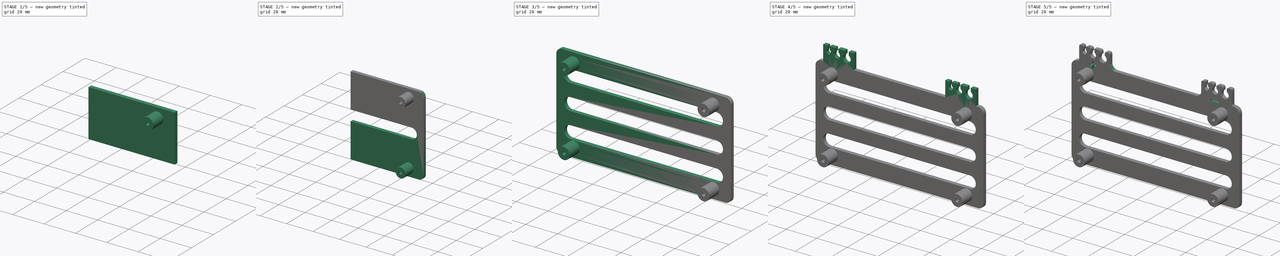
[diagram: build sequence overview — one tinted view per stage of 5, left to right]
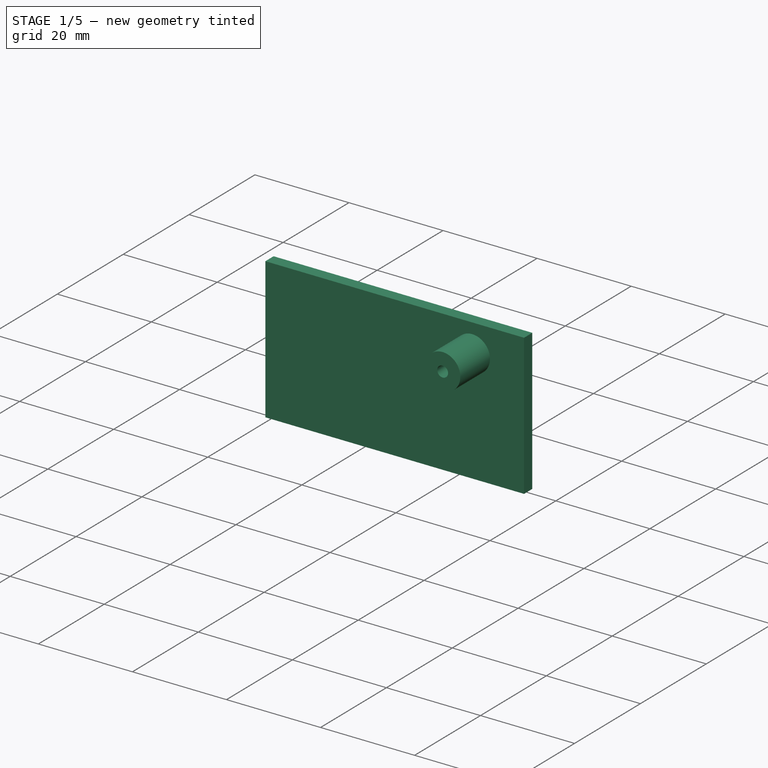
[diagram: stage 1 of 5 — iso view after this stage's code; geometry added in this stage tinted green]
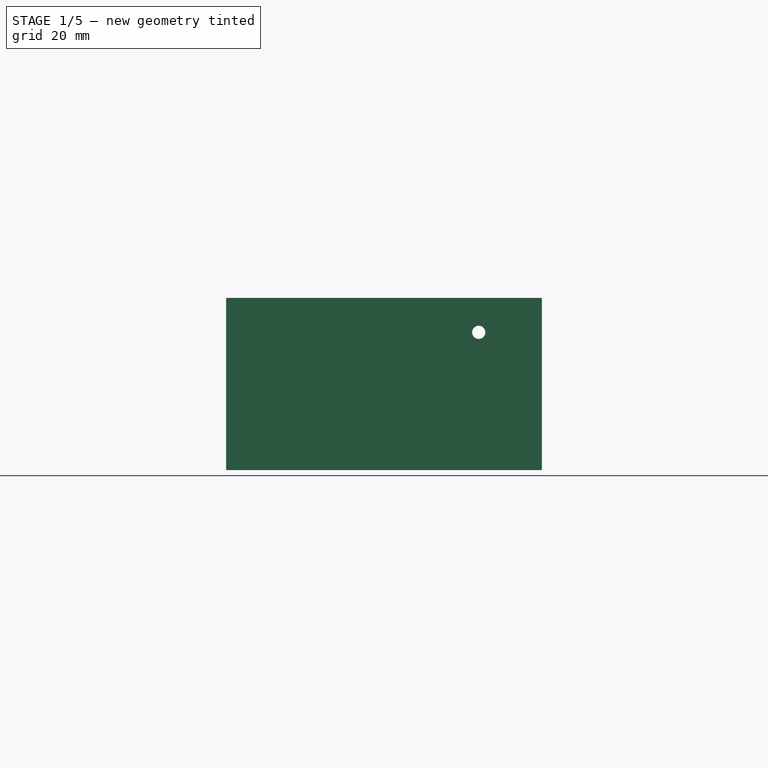
[diagram: stage 1 of 5 — front view after this stage's code; geometry added in this stage tinted green]
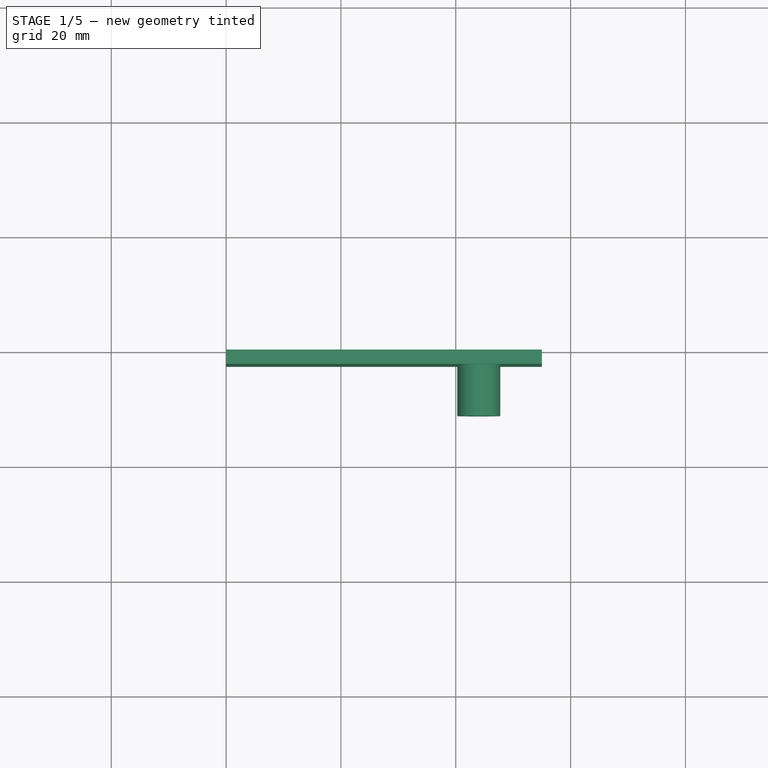
[diagram: stage 1 of 5 — top view after this stage's code; geometry added in this stage tinted green]
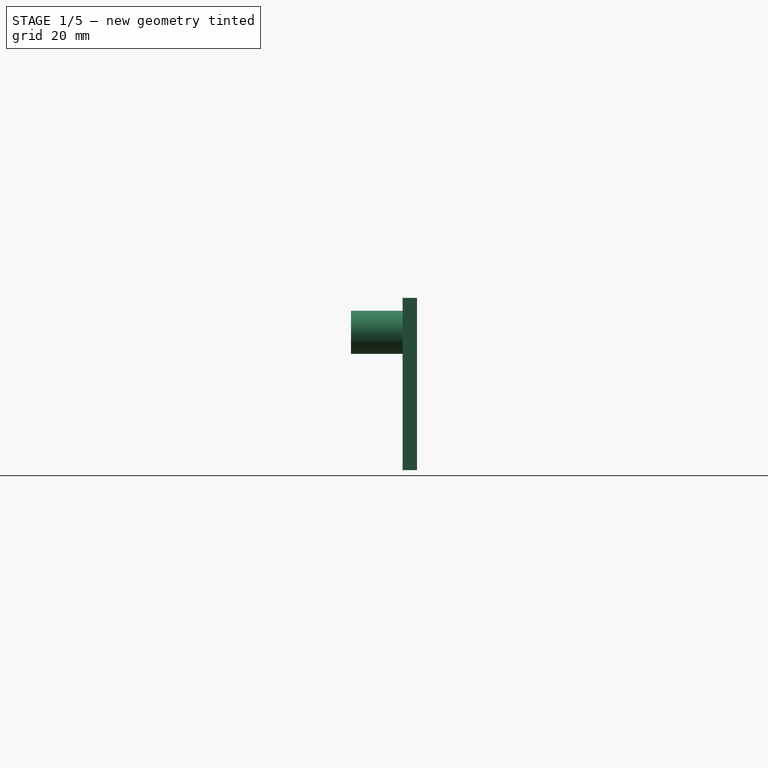
[diagram: stage 1 of 5 — right view after this stage's code; geometry added in this stage tinted green]
FCSTD DOCUMENT  (FreeCAD 1.0R39319 (Git))
Label: ConnectorBoardv3_Carrier
License: All rights reserved
LicenseURL: https://en.wikipedia.org/wiki/All_rights_reserved
objects: Sketcher::SketchObject×8, PartDesign::Pocket×4, PartDesign::Pad×3, PartDesign::Fillet×3, PartDesign::Mirrored×2, PartDesign::LinearPattern×2, PartDesign::CoordinateSystem×2, PartDesign::Hole×1, PartDesign::Body×1, App::Part×1
note: 60 computed .brp shape members not serialized (recipe doc carries the construction recipe); baked Part::Feature solids carry a one-line shape summary decoded from their .brp

FEATURE [Sketcher::SketchObject] Sketch
  ArcFitTolerance = 1e-06
  AttachmentSupport = -> [XZ_Plane001]
  FullyConstrained = true
  MakeInternals = false
  MapMode = 5
  Placement = pos=(0,0,0) rot=(1,0,0;1.5708rad)
  sketch-geometry (4):
    g0: LineSegment StartX=0 StartY=30 StartZ=0 EndX=0 EndY=0 EndZ=0
    g1: LineSegment StartX=0 StartY=0 StartZ=0 EndX=55 EndY=0 EndZ=0
    g2: LineSegment StartX=55 StartY=0 StartZ=0 EndX=55 EndY=30 EndZ=0
    g3: LineSegment StartX=55 StartY=30 StartZ=0 EndX=0 EndY=30 EndZ=0
  constraints (12):
    c: Coincident(g0,g1)
    c: Coincident(g1,g2)
    c: Coincident(g2,g3)
    c: Coincident(g3,g0)
    c: Vertical(g0)
    c: Vertical(g2)
    c: Distance(g-1,g2) = 55
    c: Distance(g0,g1) = 30
    c: Horizontal(g1)
    c: Horizontal(g3)
    c: DistanceX(g-1,g0) = 0
    c: DistanceY(g-1,g0) = 0
FEATURE [PartDesign::Pad] Pad
  Direction = (0,-1,2e-16)
  Length = 2.5
  Length2 = 10
  Placement = pos=(0,0,0) rot=(1,0,0;1.5708rad)
  Profile = -> Sketch
  ReferenceAxis = -> Sketch [N_Axis]
  Refine = true
  Suppressed = false
  Type = 0
FEATURE [Sketcher::SketchObject] Sketch001
  ArcFitTolerance = 1e-06
  AttachmentSupport = -> [XZ_Plane001]
  FullyConstrained = true
  MakeInternals = false
  MapMode = 5
  Placement = pos=(0,0,0) rot=(1,0,0;1.5708rad)
  sketch-geometry (1):
    g0: Circle CenterX=44 CenterY=24 CenterZ=0 NormalX=0 NormalY=0 NormalZ=1 AngleXU=0 Radius=3.75
  constraints (3):
    c: Diameter(g0) = 7.5
    c: DistanceX(g-1,g0) = 44
    c: Distance(g0,g-1) = 24
FEATURE [PartDesign::Pad] Pad001
  BaseFeature = -> Pad
  Direction = (0,-1,2e-16)
  Length = 11.5
  Length2 = 10
  Placement = pos=(0,0,0) rot=(1,0,0;1.5708rad)
  Profile = -> Sketch001
  ReferenceAxis = -> Sketch001 [N_Axis]
  Refine = true
  Suppressed = false
  Type = 0
FEATURE [PartDesign::Hole] Hole
  BaseFeature = -> Pad001
  CustomThreadClearance = 0
  Depth = 128.667
  DepthType = 1
  Diameter = 2.3
  DrillForDepth = false
  DrillPoint = 1
  DrillPointAngle = 118
  HoleCutCountersinkAngle = 90
  HoleCutCustomValues = false
  HoleCutDepth = 0
  HoleCutDiameter = 6.1
  HoleCutType = 0
  ModelThread = false
  Placement = pos=(0,0,0) rot=(1,0,0;1.5708rad)
  Profile = -> Pad001 [Face7]
  Refine = true
  Suppressed = false
  Tapered = false
  TaperedAngle = 90
  ThreadClass = 0
  ThreadDepth = 128.667
  ThreadDepthType = 0
  ThreadDirection = 0
  ThreadFit = 0
  ThreadSize = 0
  ThreadType = 0
  Threaded = false
  UseCustomThreadClearance = false
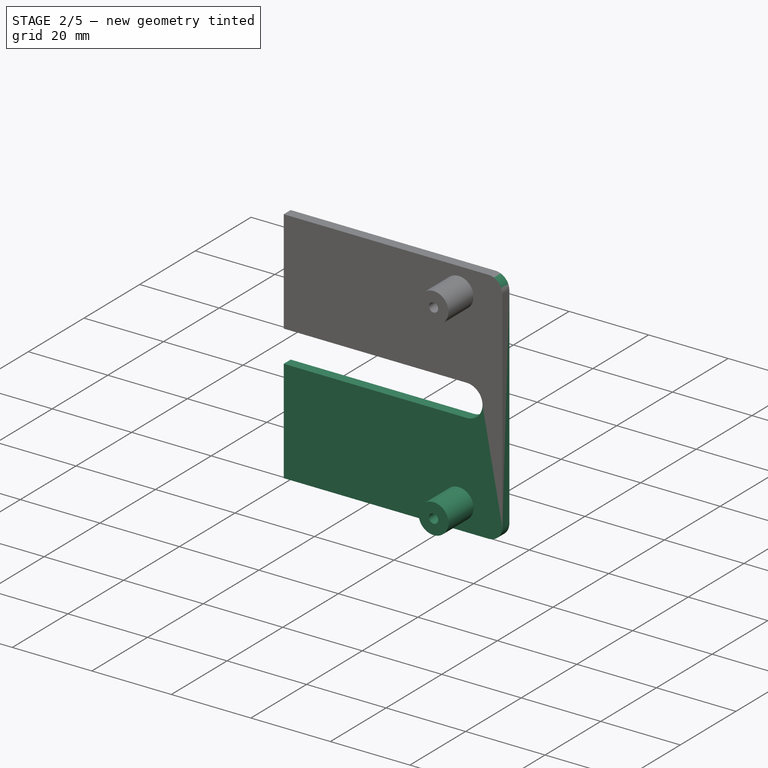
[diagram: stage 2 of 5 — iso view after this stage's code; geometry added in this stage tinted green]
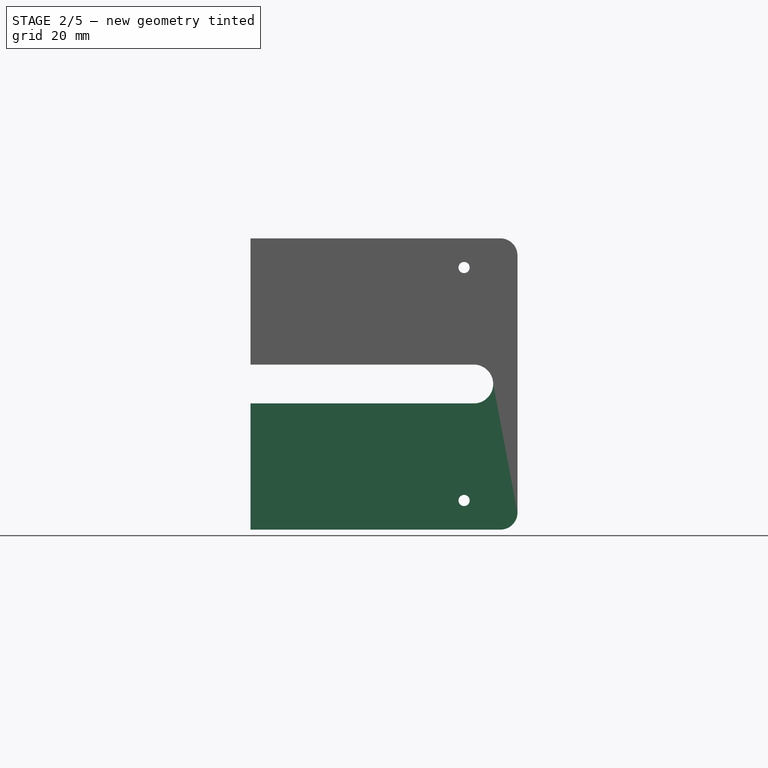
[diagram: stage 2 of 5 — front view after this stage's code; geometry added in this stage tinted green]
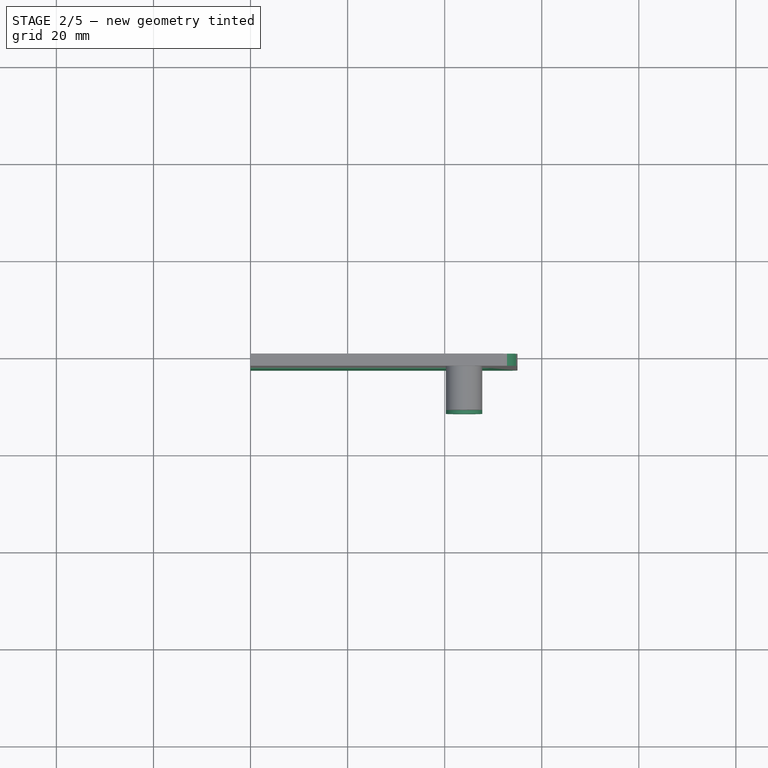
[diagram: stage 2 of 5 — top view after this stage's code; geometry added in this stage tinted green]
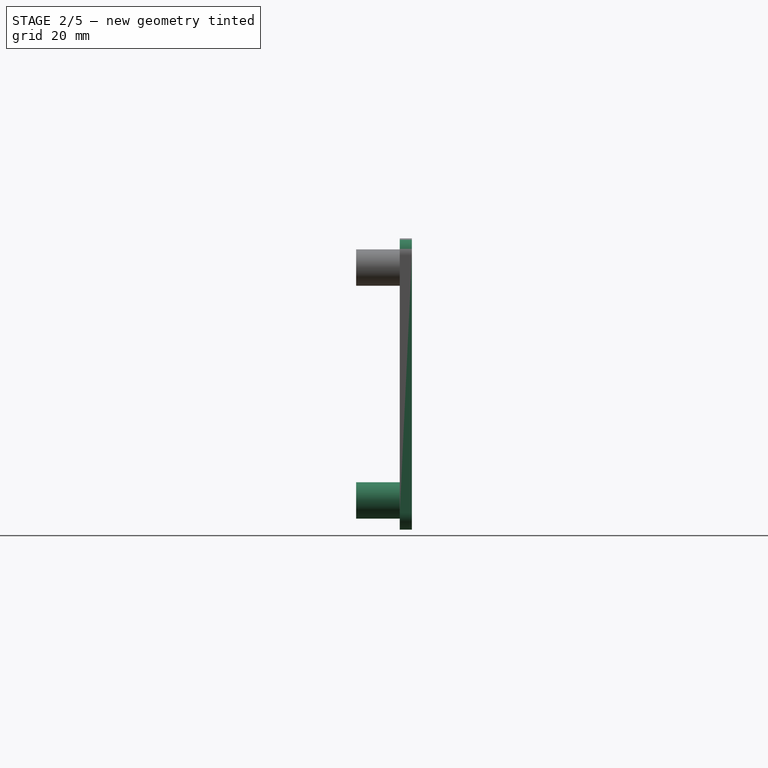
[diagram: stage 2 of 5 — right view after this stage's code; geometry added in this stage tinted green]
FEATURE [PartDesign::Fillet] Fillet
  Base = -> Hole [Edge5]
  BaseFeature = -> Hole
  Placement = pos=(0,0,0) rot=(1,0,0;1.5708rad)
  Radius = 3.5
  Refine = true
  SupportTransform = false
  Suppressed = false
  UseAllEdges = false
FEATURE [Sketcher::SketchObject] Sketch002
  ArcFitTolerance = 1e-06
  AttachmentSupport = -> [XZ_Plane001]
  FullyConstrained = true
  MakeInternals = false
  MapMode = 5
  Placement = pos=(0,0,0) rot=(1,0,0;1.5708rad)
  sketch-geometry (4):
    g0: ArcOfCircle CenterX=0 CenterY=0 CenterZ=0 NormalX=0 NormalY=0 NormalZ=1 AngleXU=0 Radius=4 StartAngle=1.5708 EndAngle=4.71239
    g1: ArcOfCircle CenterX=46 CenterY=-2e-16 CenterZ=0 NormalX=0 NormalY=0 NormalZ=1 AngleXU=0 Radius=4 StartAngle=4.71239 EndAngle=7.85398
    g2: LineSegment StartX=-6e-16 StartY=4 StartZ=0 EndX=46 EndY=4 EndZ=0
    g3: LineSegment StartX=-7e-16 StartY=-4 StartZ=0 EndX=46 EndY=-4 EndZ=0
  constraints (9):
    c: Tangent(g0,g2) = 1.5708
    c: Tangent(g0,g3) = -1.5708
    c: Tangent(g1,g2) = 1.5708
    c: Tangent(g1,g3) = -1.5708
    c: Equal(g0,g1)
    c: Horizontal(g3)
    c: Coincident(g0,g-1)
    c: DistanceY(g0,g0) = 4
    c: DistanceX(g3,g3) = 46
FEATURE [PartDesign::Pocket] Pocket
  BaseFeature = -> Fillet
  Direction = (0,1,-2e-16)
  Length = 5
  Length2 = 5
  Placement = pos=(0,0,0) rot=(1,0,0;1.5708rad)
  Profile = -> Sketch002
  ReferenceAxis = -> Sketch002 [N_Axis]
  Refine = true
  Reversed = true
  Suppressed = false
  Type = 1
FEATURE [PartDesign::Mirrored] Mirrored
  BaseFeature = -> Pocket
  MirrorPlane = -> XY_Plane001
  Placement = pos=(0,0,0) rot=(1,0,0;1.5708rad)
  Refine = true
  Suppressed = false
  TransformMode = 1
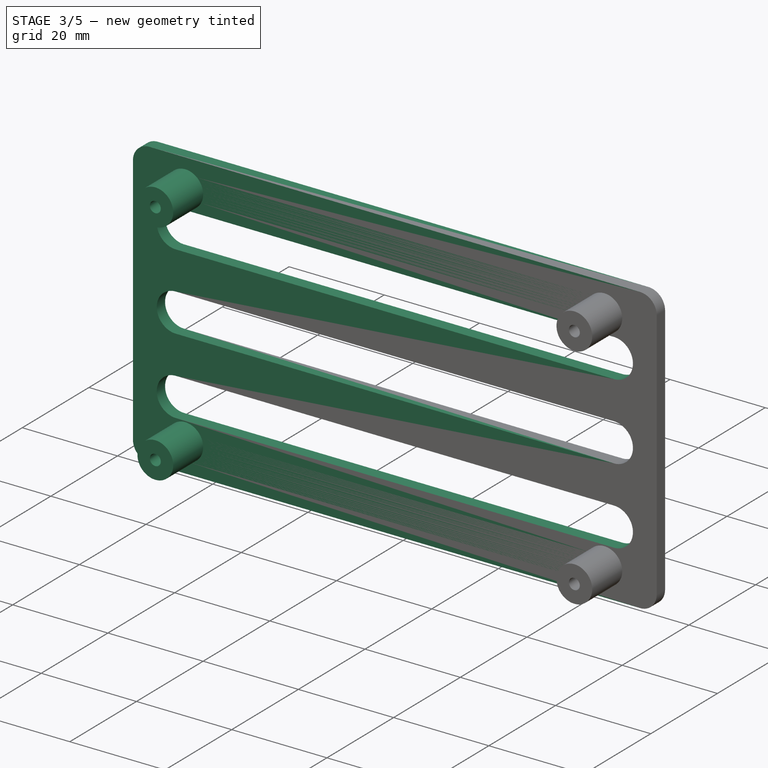
[diagram: stage 3 of 5 — iso view after this stage's code; geometry added in this stage tinted green]
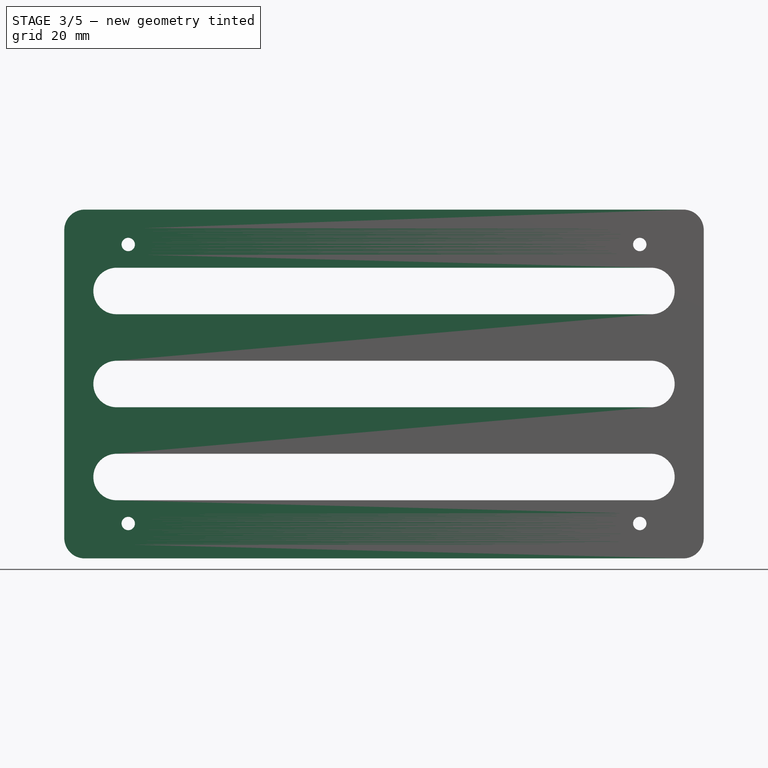
[diagram: stage 3 of 5 — front view after this stage's code; geometry added in this stage tinted green]
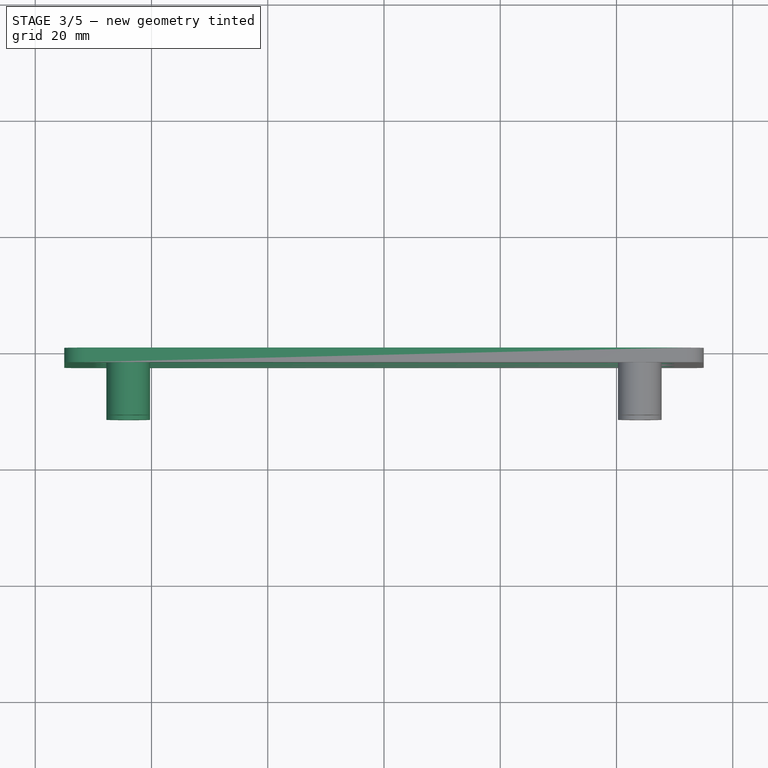
[diagram: stage 3 of 5 — top view after this stage's code; geometry added in this stage tinted green]
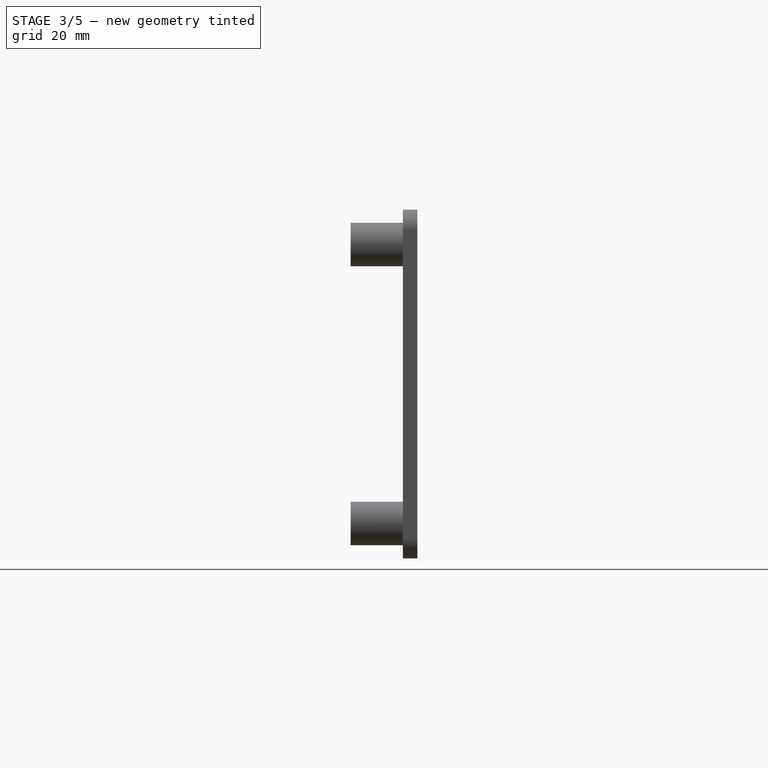
[diagram: stage 3 of 5 — right view after this stage's code; geometry added in this stage tinted green]
FEATURE [PartDesign::LinearPattern] LinearPattern
  BaseFeature = -> Mirrored
  Direction = -> Z_Axis001
  Length = 16
  Mode = 0
  Occurrences = 2
  Offset = 16
  Originals = -> [Pocket]
  Placement = pos=(0,0,0) rot=(1,0,0;1.5708rad)
  Refine = true
  Suppressed = false
  TransformMode = 0
FEATURE [PartDesign::LinearPattern] LinearPattern001
  BaseFeature = -> LinearPattern
  Direction = -> Z_Axis001
  Length = 16
  Mode = 0
  Occurrences = 2
  Offset = 16
  Originals = -> [Pocket]
  Placement = pos=(0,0,0) rot=(1,0,0;1.5708rad)
  Refine = true
  Reversed = true
  Suppressed = false
  TransformMode = 0
FEATURE [PartDesign::Mirrored] Mirrored001
  BaseFeature = -> LinearPattern001
  MirrorPlane = -> YZ_Plane001
  Placement = pos=(0,0,0) rot=(1,0,0;1.5708rad)
  Refine = true
  Suppressed = false
  TransformMode = 1
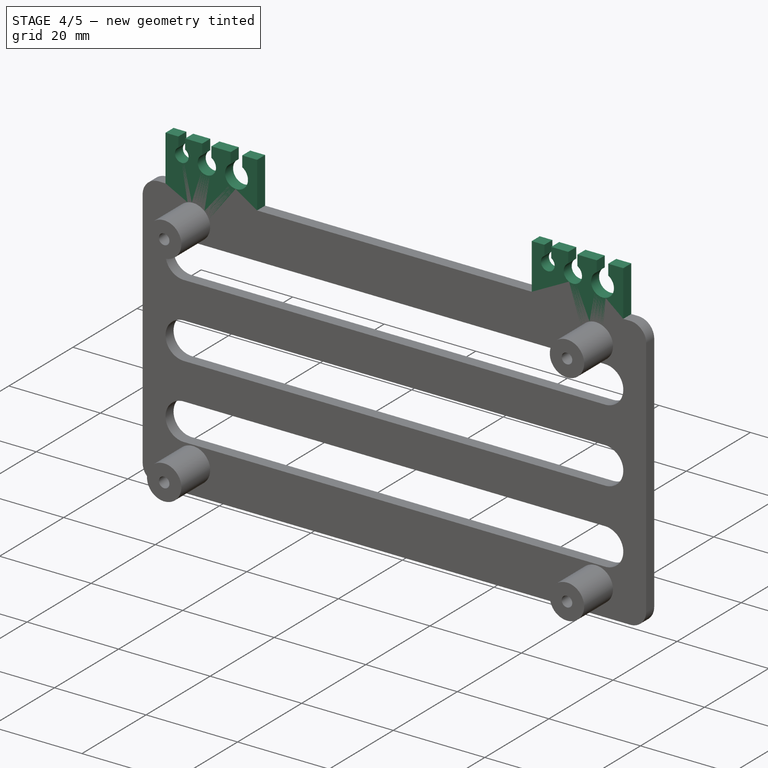
[diagram: stage 4 of 5 — iso view after this stage's code; geometry added in this stage tinted green]
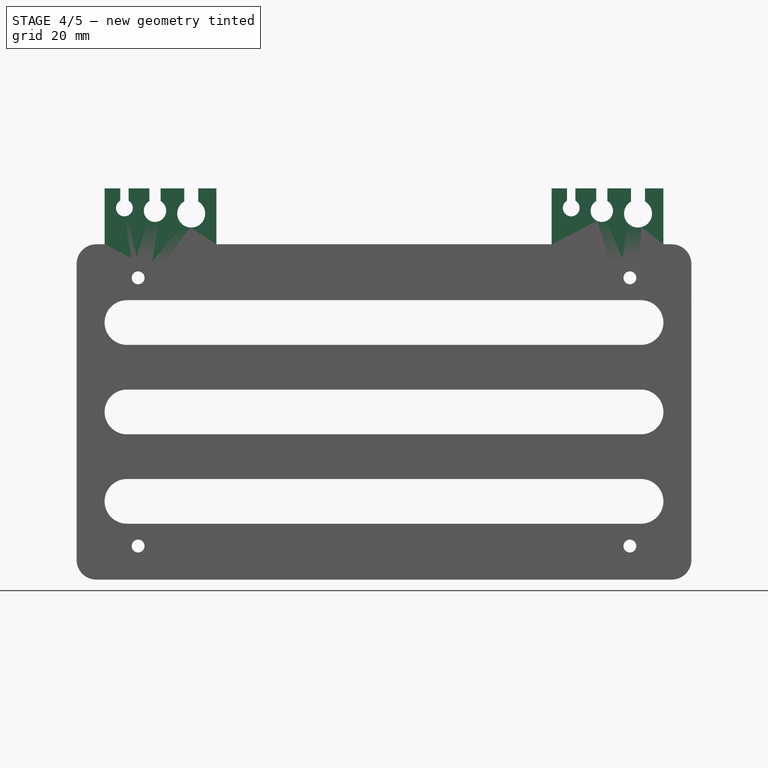
[diagram: stage 4 of 5 — front view after this stage's code; geometry added in this stage tinted green]
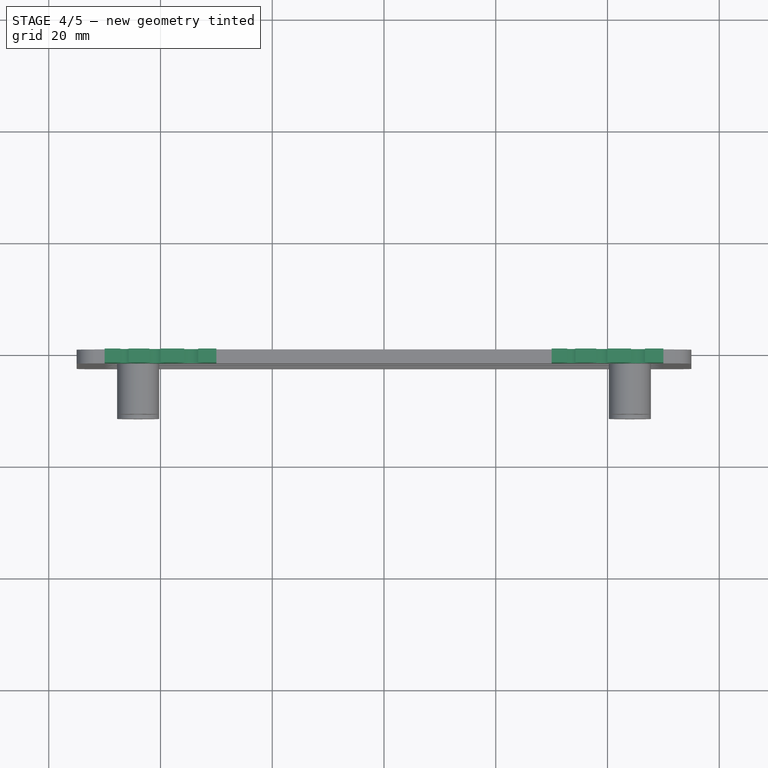
[diagram: stage 4 of 5 — top view after this stage's code; geometry added in this stage tinted green]
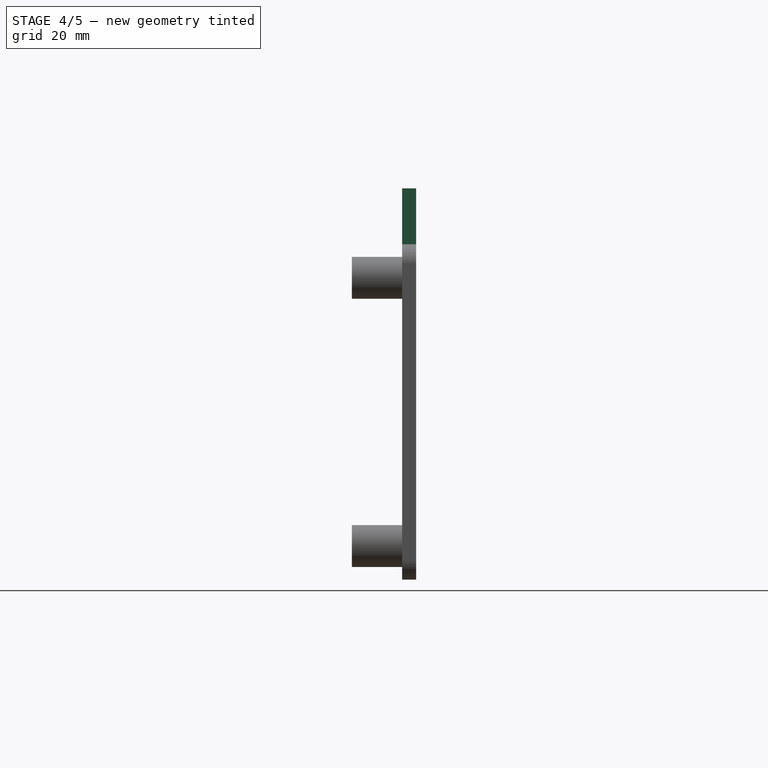
[diagram: stage 4 of 5 — right view after this stage's code; geometry added in this stage tinted green]
FEATURE [Sketcher::SketchObject] Sketch003
  ArcFitTolerance = 1e-06
  AttachmentSupport = -> [Mirrored001]
  ExternalGeometry = -> [Mirrored001]
  FullyConstrained = true
  MakeInternals = false
  MapMode = 5
  Placement = pos=(0,-2.5,0) rot=(1,0,0;1.5708rad)
  sketch-geometry (8):
    g0: LineSegment StartX=-50 StartY=40 StartZ=0 EndX=-50 EndY=30 EndZ=0
    g1: LineSegment StartX=-50 StartY=30 StartZ=0 EndX=-30 EndY=30 EndZ=0
    g2: LineSegment StartX=-30 StartY=30 StartZ=0 EndX=-30 EndY=40 EndZ=0
    g3: LineSegment StartX=-30 StartY=40 StartZ=0 EndX=-50 EndY=40 EndZ=0
    g4: LineSegment StartX=30 StartY=40 StartZ=0 EndX=30 EndY=30 EndZ=0
    g5: LineSegment StartX=30 StartY=30 StartZ=0 EndX=50 EndY=30 EndZ=0
    g6: LineSegment StartX=50 StartY=30 StartZ=0 EndX=50 EndY=40 EndZ=0
    g7: LineSegment StartX=50 StartY=40 StartZ=0 EndX=30 EndY=40 EndZ=0
  constraints (23):
    c: Coincident(g0,g1)
    c: Coincident(g1,g2)
    c: Coincident(g2,g3)
    c: Coincident(g3,g0)
    c: Vertical(g0)
    c: Vertical(g2)
    c: Horizontal(g1)
    c: Horizontal(g3)
    c: Coincident(g4,g5)
    c: Coincident(g5,g6)
    c: Coincident(g6,g7)
    c: Coincident(g7,g4)
    c: Vertical(g4)
    c: Vertical(g6)
    c: Horizontal(g5)
    c: Horizontal(g7)
    c: Distance(g1,g3) = 10
    c: Distance(g5,g7) = 10
    c: Distance(g2,g0) = 20
    c: Distance(g6,g4) = 20
    c: PointOnObject(g1,g-3)
    c: DistanceX(g0,g6) = 100
    c: Symmetric(g2,g4,g-2)
FEATURE [PartDesign::Pad] Pad002
  BaseFeature = -> Mirrored001
  Direction = (0,-1,2e-16)
  Length = 10
  Length2 = 10
  Placement = pos=(0,0,0) rot=(1,0,0;1.5708rad)
  Profile = -> Sketch003
  ReferenceAxis = -> Sketch003 [N_Axis]
  Refine = true
  Suppressed = false
  Type = 3
  UpToFace = -> Mirrored001 [Face8]
FEATURE [Sketcher::SketchObject] Sketch004
  ArcFitTolerance = 1e-06
  AttachmentSupport = -> [Pad002]
  ExternalGeometry = -> [Pad002]
  FullyConstrained = true
  MakeInternals = false
  MapMode = 5
  Placement = pos=(0,-2.5,8e-16) rot=(1,0,0;1.5708rad)
  sketch-geometry (6):
    g0: Circle CenterX=-46.458 CenterY=36.5 CenterZ=0 NormalX=0 NormalY=0 NormalZ=1 AngleXU=0 Radius=1.5
    g1: Circle CenterX=-40.9807 CenterY=36 CenterZ=0 NormalX=0 NormalY=0 NormalZ=1 AngleXU=0 Radius=2
    g2: Circle CenterX=-34.5 CenterY=35.5 CenterZ=0 NormalX=0 NormalY=0 NormalZ=1 AngleXU=0 Radius=2.5
    g3: Circle CenterX=45.458 CenterY=35.5 CenterZ=0 NormalX=0 NormalY=0 NormalZ=1 AngleXU=0 Radius=2.5
    g4: Circle CenterX=38.9772 CenterY=36 CenterZ=0 NormalX=0 NormalY=0 NormalZ=1 AngleXU=0 Radius=2
    g5: Circle CenterX=33.5 CenterY=36.5 CenterZ=0 NormalX=0 NormalY=0 NormalZ=1 AngleXU=0 Radius=1.5
  constraints (18):
    c: Diameter(g2) = 5
    c: Diameter(g1) = 4
    c: Diameter(g0) = 3
    c: Distance(g2,g-5) = 2
    c: Distance(g1,g-5) = 2
    c: Distance(g0,g-5) = 2
    c: Distance(g2,g-3) = 2
    c: Distance(g1,g2) = 2
    c: Distance(g0,g1) = 2
    c: Diameter(g3) = 5
    c: Diameter(g4) = 4
    c: Diameter(g5) = 3
    c: Distance(g3,g-6) = 2
    c: Distance(g4,g-6) = 2
    c: Distance(g5,g-6) = 2
    c: Distance(g5,g-7) = 2
    c: Distance(g5,g4) = 2
    c: Distance(g4,g3) = 2
FEATURE [PartDesign::Pocket] Pocket001
  BaseFeature = -> Pad002
  Direction = (0,1,-2e-16)
  Length = 5
  Length2 = 5
  Placement = pos=(0,0,0) rot=(1,0,0;1.5708rad)
  Profile = -> Sketch004
  ReferenceAxis = -> Sketch004 [N_Axis]
  Refine = true
  Suppressed = false
  Type = 0
FEATURE [Sketcher::SketchObject] Sketch005
  ArcFitTolerance = 1e-06
  AttachmentSupport = -> [Pocket001]
  ExternalGeometry = -> [Pocket001]
  FullyConstrained = true
  MakeInternals = false
  MapMode = 5
  Placement = pos=(0,-2.5,8e-16) rot=(1,0,0;1.5708rad)
  sketch-geometry (24):
    g0: LineSegment StartX=-35.75 StartY=40 StartZ=0 EndX=-35.75 EndY=35.5 EndZ=0
    g1: LineSegment StartX=-35.75 StartY=35.5 StartZ=0 EndX=-33.25 EndY=35.5 EndZ=0
    g2: LineSegment StartX=-33.25 StartY=35.5 StartZ=0 EndX=-33.25 EndY=40 EndZ=0
    g3: LineSegment StartX=-33.25 StartY=40 StartZ=0 EndX=-35.75 EndY=40 EndZ=0
    g4: LineSegment StartX=-41.9807 StartY=40 StartZ=0 EndX=-41.9807 EndY=36 EndZ=0
    g5: LineSegment StartX=-41.9807 StartY=36 StartZ=0 EndX=-39.9807 EndY=36 EndZ=0
    g6: LineSegment StartX=-39.9807 StartY=36 StartZ=0 EndX=-39.9807 EndY=40 EndZ=0
    g7: LineSegment StartX=-39.9807 StartY=40 StartZ=0 EndX=-41.9807 EndY=40 EndZ=0
    g8: LineSegment StartX=-47.208 StartY=40 StartZ=0 EndX=-47.208 EndY=36.5 EndZ=0
    g9: LineSegment StartX=-47.208 StartY=36.5 StartZ=0 EndX=-45.708 EndY=36.5 EndZ=0
    g10: LineSegment StartX=-45.708 StartY=36.5 StartZ=0 EndX=-45.708 EndY=40 EndZ=0
    g11: LineSegment StartX=-45.708 StartY=40 StartZ=0 EndX=-47.208 EndY=40 EndZ=0
    g12: LineSegment StartX=32.75 StartY=40 StartZ=0 EndX=32.75 EndY=36.5 EndZ=0
    g13: LineSegment StartX=32.75 StartY=36.5 StartZ=0 EndX=34.25 EndY=36.5 EndZ=0
    g14: LineSegment StartX=34.25 StartY=36.5 StartZ=0 EndX=34.25 EndY=40 EndZ=0
    g15: LineSegment StartX=34.25 StartY=40 StartZ=0 EndX=32.75 EndY=40 EndZ=0
    g16: LineSegment StartX=37.9772 StartY=40 StartZ=0 EndX=37.9772 EndY=36 EndZ=0
    g17: LineSegment StartX=37.9772 StartY=36 StartZ=0 EndX=39.9772 EndY=36 EndZ=0
    g18: LineSegment StartX=39.9772 StartY=36 StartZ=0 EndX=39.9772 EndY=40 EndZ=0
    g19: LineSegment StartX=39.9772 StartY=40 StartZ=0 EndX=37.9772 EndY=40 EndZ=0
    g20: LineSegment StartX=44.208 StartY=40 StartZ=0 EndX=44.208 EndY=35.5 EndZ=0
    g21: LineSegment StartX=44.208 StartY=35.5 StartZ=0 EndX=46.708 EndY=35.5 EndZ=0
    g22: LineSegment StartX=46.708 StartY=35.5 StartZ=0 EndX=46.708 EndY=40 EndZ=0
    g23: LineSegment StartX=46.708 StartY=40 StartZ=0 EndX=44.208 EndY=40 EndZ=0
  constraints (66):
    c: Coincident(g0,g1)
    c: Coincident(g1,g2)
    c: Coincident(g2,g3)
    c: Coincident(g3,g0)
    c: Vertical(g0)
    c: Vertical(g2)
    c: Horizontal(g1)
    c: Horizontal(g3)
    c: Coincident(g4,g5)
    c: Coincident(g5,g6)
    c: Coincident(g6,g7)
    c: Coincident(g7,g4)
    c: Vertical(g4)
    c: Vertical(g6)
    c: Horizontal(g5)
    c: Horizontal(g7)
    c: Coincident(g8,g9)
    c: Coincident(g9,g10)
    c: Coincident(g10,g11)
    c: Coincident(g11,g8)
    c: Vertical(g8)
    c: Vertical(g10)
    c: Horizontal(g9)
    c: Horizontal(g11)
    c: PointOnObject(g2,g-3)
    c: PointOnObject(g6,g-3)
    c: PointOnObject(g10,g-3)
    c: Symmetric(g8,g9,g-6)
    c: Symmetric(g4,g5,g-5)
    c: Symmetric(g0,g1,g-4)
    c: Distance(g3,g3) = 2.5
    c: DistanceX(g7,g7) = 2
    c: DistanceX(g11,g11) = 1.5
    c: Coincident(g12,g13)
    c: Coincident(g13,g14)
    c: Coincident(g14,g15)
    c: Coincident(g15,g12)
    c: Vertical(g12)
    c: Vertical(g14)
    c: Horizontal(g13)
    c: Horizontal(g15)
    c: PointOnObject(g12,g-7)
    c: Coincident(g16,g17)
    c: Coincident(g17,g18)
    c: Coincident(g18,g19)
    c: Coincident(g19,g16)
    c: Vertical(g16)
    c: Vertical(g18)
    c: Horizontal(g17)
    c: Horizontal(g19)
    c: PointOnObject(g16,g-7)
    c: Coincident(g20,g21)
    c: Coincident(g21,g22)
    c: Coincident(g22,g23)
    c: Coincident(g23,g20)
    c: Vertical(g20)
    c: Vertical(g22)
    c: Horizontal(g21)
    c: Horizontal(g23)
    c: PointOnObject(g20,g-7)
    c: Symmetric(g12,g13,g-8)
    c: Symmetric(g16,g17,g-9)
    c: Symmetric(g20,g21,g-10)
    c: DistanceX(g23,g23) = 2.5
    c: Distance(g19,g19) = 2
    c: DistanceX(g15,g15) = 1.5
FEATURE [PartDesign::Pocket] Pocket002
  BaseFeature = -> Pocket001
  Direction = (0,1,-2e-16)
  Length = 5
  Length2 = 5
  Placement = pos=(0,0,0) rot=(1,0,0;1.5708rad)
  Profile = -> Sketch005
  ReferenceAxis = -> Sketch005 [N_Axis]
  Refine = true
  Suppressed = false
  Type = 0
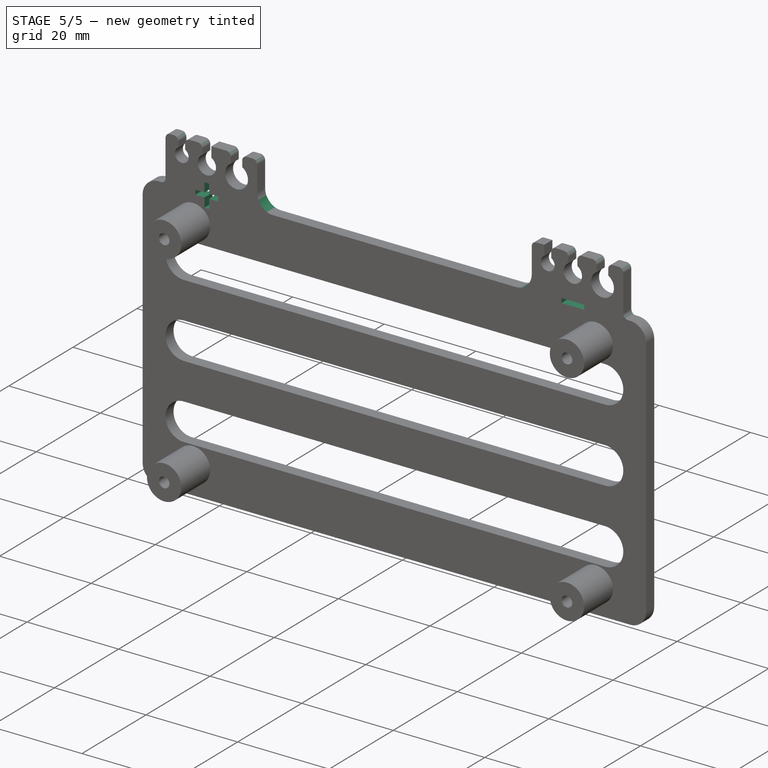
[diagram: stage 5 of 5 — iso view after this stage's code; geometry added in this stage tinted green]
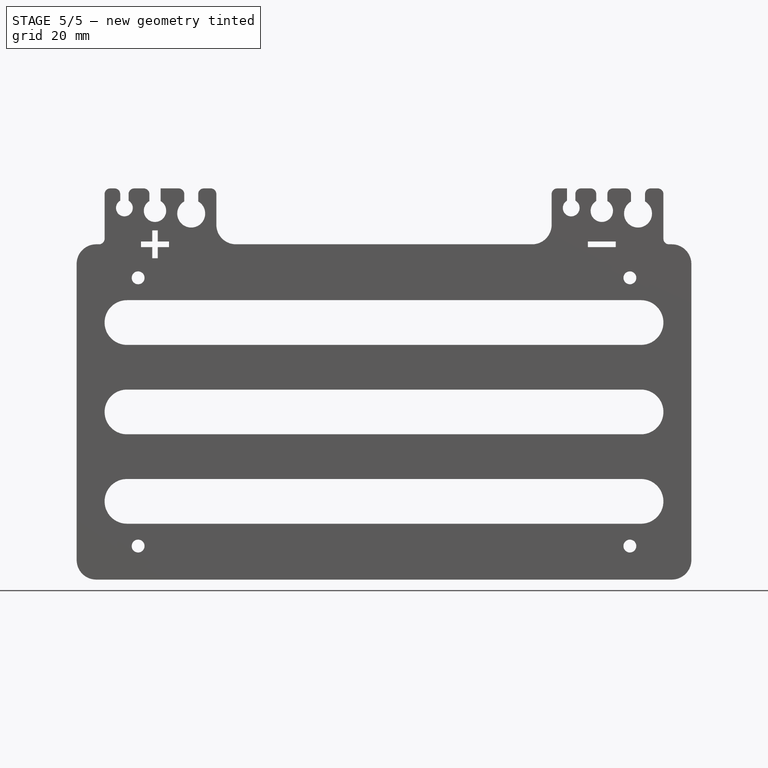
[diagram: stage 5 of 5 — front view after this stage's code; geometry added in this stage tinted green]
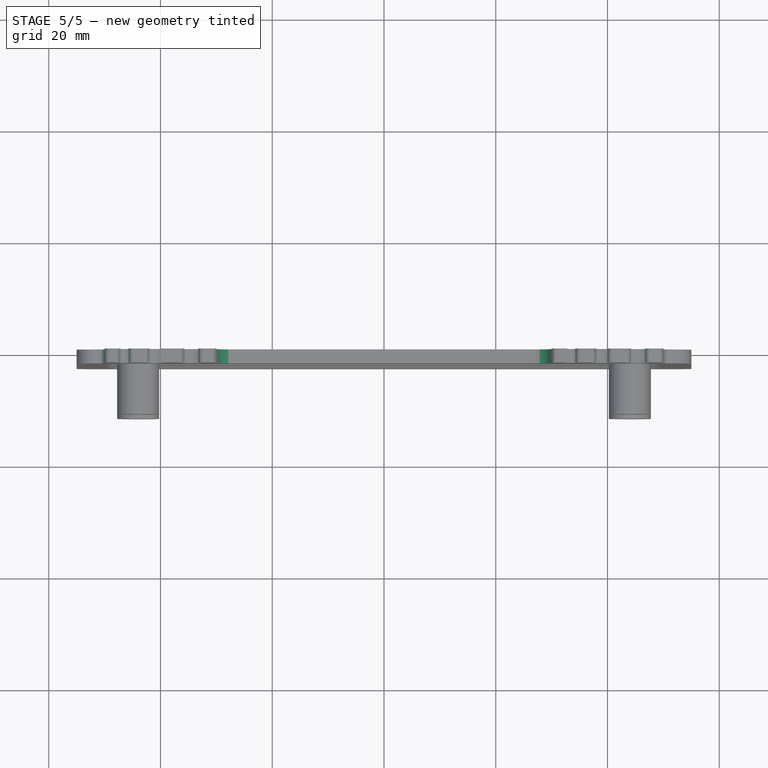
[diagram: stage 5 of 5 — top view after this stage's code; geometry added in this stage tinted green]
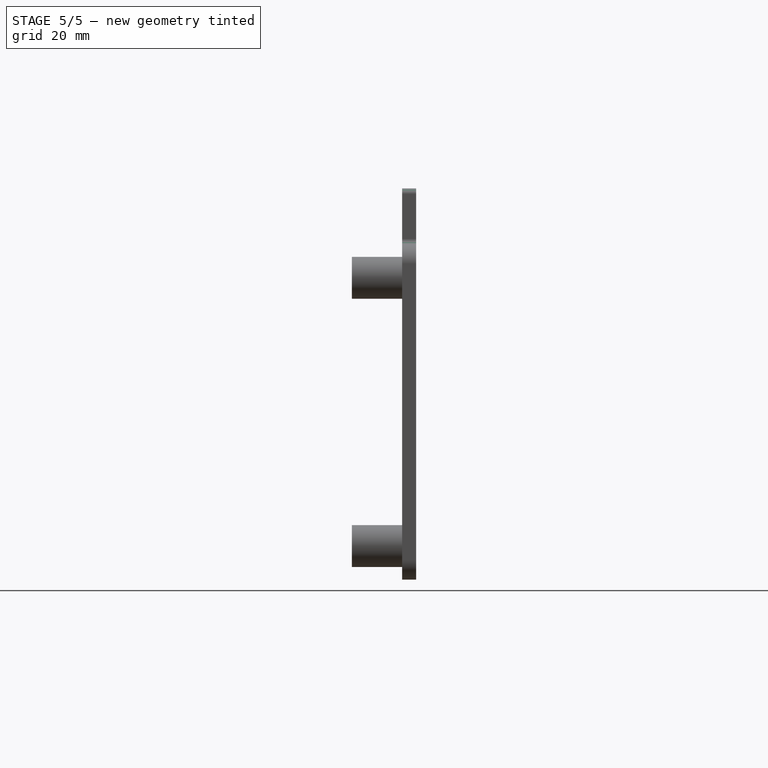
[diagram: stage 5 of 5 — right view after this stage's code; geometry added in this stage tinted green]
FEATURE [PartDesign::Fillet] Fillet001
  Base = -> Pocket002 [Edge3,Edge1]
  BaseFeature = -> Pocket002
  Placement = pos=(0,0,0) rot=(1,0,0;1.5708rad)
  Radius = 3.5
  Refine = true
  SupportTransform = false
  Suppressed = false
  UseAllEdges = false
FEATURE [PartDesign::Fillet] Fillet002
  Base = -> Fillet001 [Edge141,Edge167,Edge158,Edge165,Edge157,Edge150,Edge149,Edge169,Edge137,Edge138,Edge143,Edge151,Edge153,Edge159,Edge161,Edge163]
  BaseFeature = -> Fillet001
  Placement = pos=(0,0,0) rot=(1,0,0;1.5708rad)
  Radius = 1
  Refine = true
  SupportTransform = false
  Suppressed = false
  UseAllEdges = false
FEATURE [Sketcher::SketchObject] Sketch006
  ArcFitTolerance = 1e-06
  AttachmentSupport = -> [Fillet002]
  FullyConstrained = true
  MakeInternals = false
  MapMode = 5
  Placement = pos=(0,-2.5,8e-16) rot=(1,0,0;1.5708rad)
FEATURE [Sketcher::SketchObject] Sketch007
  ArcFitTolerance = 1e-06
  AttachmentSupport = -> [Fillet002]
  ExternalGeometry = -> [Fillet002]
  FullyConstrained = true
  MakeInternals = false
  MapMode = 5
  Placement = pos=(0,-2.5,8e-16) rot=(1,0,0;1.5708rad)
  sketch-geometry (20):
    g0: LineSegment StartX=-43.4807 StartY=30.5 StartZ=0 EndX=-41.4807 EndY=30.5 EndZ=0
    g1: LineSegment StartX=-41.4807 StartY=30.5 StartZ=0 EndX=-41.4807 EndY=32.5 EndZ=0
    g2: LineSegment StartX=-41.4807 StartY=32.5 StartZ=0 EndX=-40.4807 EndY=32.5 EndZ=0
    g3: LineSegment StartX=-40.4807 StartY=32.5 StartZ=0 EndX=-40.4807 EndY=30.5 EndZ=0
    g4: LineSegment StartX=-40.4807 StartY=30.5 StartZ=0 EndX=-38.4807 EndY=30.5 EndZ=0
    g5: LineSegment StartX=-38.4807 StartY=30.5 StartZ=0 EndX=-38.4807 EndY=29.5 EndZ=0
    g6: LineSegment StartX=-38.4807 StartY=29.5 StartZ=0 EndX=-40.4807 EndY=29.5 EndZ=0
    g7: LineSegment StartX=-40.4807 StartY=29.5 StartZ=0 EndX=-40.4807 EndY=27.5 EndZ=0
    g8: LineSegment StartX=-40.4807 StartY=27.5 StartZ=0 EndX=-41.4807 EndY=27.5 EndZ=0
    g9: LineSegment StartX=-41.4807 StartY=27.5 StartZ=0 EndX=-41.4807 EndY=29.5 EndZ=0
    g10: LineSegment StartX=-41.4807 StartY=29.5 StartZ=0 EndX=-43.4807 EndY=29.5 EndZ=0
    g11: LineSegment StartX=-43.4807 StartY=29.5 StartZ=0 EndX=-43.4807 EndY=30.5 EndZ=0
    g12: LineSegment [constr] StartX=-43.4807 StartY=30 StartZ=0 EndX=-38.4807 EndY=30 EndZ=0
    g13: LineSegment [constr] StartX=-40.9807 StartY=32.5 StartZ=0 EndX=-40.9807 EndY=27.5 EndZ=0
    g14: LineSegment StartX=36.4772 StartY=30.5 StartZ=0 EndX=36.4772 EndY=29.5 EndZ=0
    g15: LineSegment StartX=36.4772 StartY=29.5 StartZ=0 EndX=41.4772 EndY=29.5 EndZ=0
    g16: LineSegment StartX=41.4772 StartY=29.5 StartZ=0 EndX=41.4772 EndY=30.5 EndZ=0
    g17: LineSegment StartX=41.4772 StartY=30.5 StartZ=0 EndX=36.4772 EndY=30.5 EndZ=0
    g18: LineSegment [constr] StartX=36.4772 StartY=30 StartZ=0 EndX=41.4772 EndY=30 EndZ=0
    g19: LineSegment [constr] StartX=38.9772 StartY=30.5 StartZ=0 EndX=38.9772 EndY=29.5 EndZ=0
  constraints (56):
    c: Horizontal(g0)
    c: Coincident(g0,g1)
    c: Vertical(g1)
    c: Coincident(g1,g2)
    c: Coincident(g2,g3)
    c: Vertical(g3)
    c: Coincident(g3,g4)
    c: Horizontal(g4)
    c: Coincident(g4,g5)
    c: Coincident(g5,g6)
    c: Horizontal(g6)
    c: Coincident(g6,g7)
    c: Vertical(g7)
    c: Coincident(g7,g8)
    c: Horizontal(g8)
    c: Coincident(g8,g9)
    c: Vertical(g9)
    c: Coincident(g9,g10)
    c: Horizontal(g10)
    c: Coincident(g10,g11)
    c: Coincident(g11,g0)
    c: Vertical(g11)
    c: Vertical(g5)
    c: Horizontal(g2)
    c: PointOnObject(g3,g0)
    c: PointOnObject(g6,g10)
    c: PointOnObject(g0,g9)
    c: PointOnObject(g3,g7)
    c: Symmetric(g11,g11,g12)
    c: Symmetric(g5,g5,g12)
    c: Symmetric(g2,g2,g13)
    c: Symmetric(g8,g8,g13)
    c: DistanceX(g12,g12) = 5
    c: DistanceY(g13,g13) = 5
    c: Distance(g3,g1) = 1
    c: Distance(g6,g4) = 1
    c: Distance(g11,g13) = 2.5
    c: Distance(g12,g2) = 2.5
    c: PointOnObject(g12,g-3)
    c: PointOnObject(g-4,g13)
    c: Coincident(g14,g15)
    c: Coincident(g15,g16)
    c: Coincident(g16,g17)
    c: Coincident(g17,g14)
    c: Vertical(g14)
    c: Vertical(g16)
    c: Horizontal(g15)
    c: Horizontal(g17)
    c: Distance(g16,g14) = 5
    c: Distance(g17,g15) = 1
    c: Symmetric(g14,g14,g18)
    c: Symmetric(g16,g16,g18)
    c: Symmetric(g17,g17,g19)
    c: Symmetric(g15,g15,g19)
    c: PointOnObject(g-3,g18)
    c: PointOnObject(g-6,g19)
FEATURE [PartDesign::Pocket] Pocket003
  BaseFeature = -> Fillet002
  Direction = (0,1,-2e-16)
  Length = 5
  Length2 = 5
  Placement = pos=(0,0,0) rot=(1,0,0;1.5708rad)
  Profile = -> Sketch007
  ReferenceAxis = -> Sketch007 [N_Axis]
  Refine = true
  Suppressed = false
  Type = 0
FEATURE [PartDesign::Body] Body  label="ConnectorBoardv3_Carrier001"
  AllowCompound = false
  Group = -> [Sketch,Pad,Sketch001,Pad001,Hole,Fillet,Sketch002,Pocket,Mirrored,LinearPattern,LinearPattern001,Mirrored001,Sketch003,Pad002,Sketch004,Pocket001,Sketch005,Pocket002,Fillet001,Fillet002,Sketch006,Sketch007,Pocket003]
  Origin = -> Origin001
  Tip = -> Pocket003
FEATURE [PartDesign::CoordinateSystem] LCS_1
  AttacherType = Attacher::AttachEngine3D
FEATURE [PartDesign::CoordinateSystem] LCS_2
  AttacherType = Attacher::AttachEngine3D
  AttachmentSupport = -> [Pocket003]
  MapMode = 11
  Placement = pos=(-44,-11.5,24) rot=(0.57735,0.57735,0.57735;4.18879rad)
FEATURE [App::Part] Part  label="ConnectorBoardv3_Carrier"
  Group = -> [Body,LCS_1,LCS_2]
  Origin = -> Origin
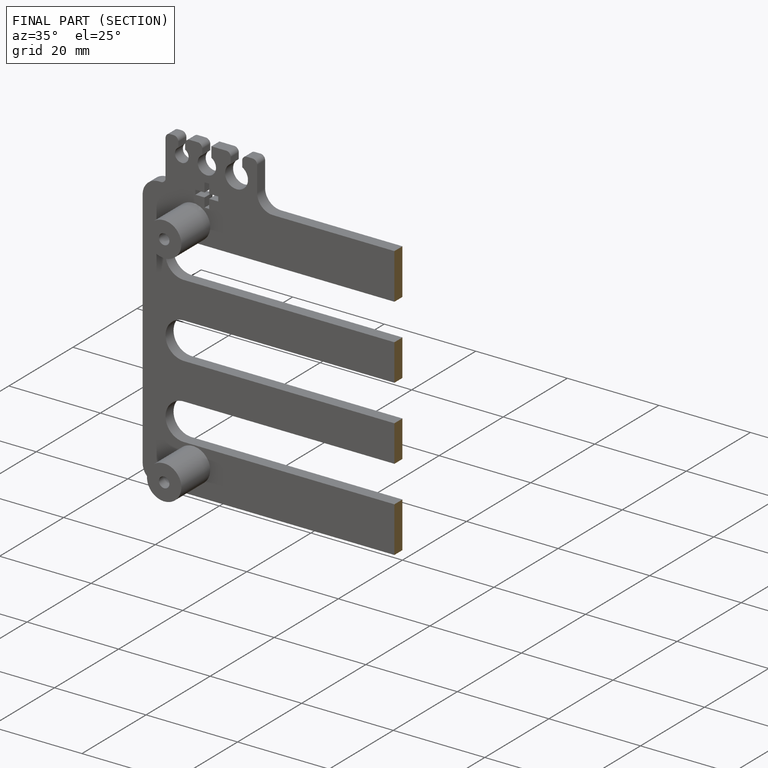
[diagram: finished part — half-section view (interior)]
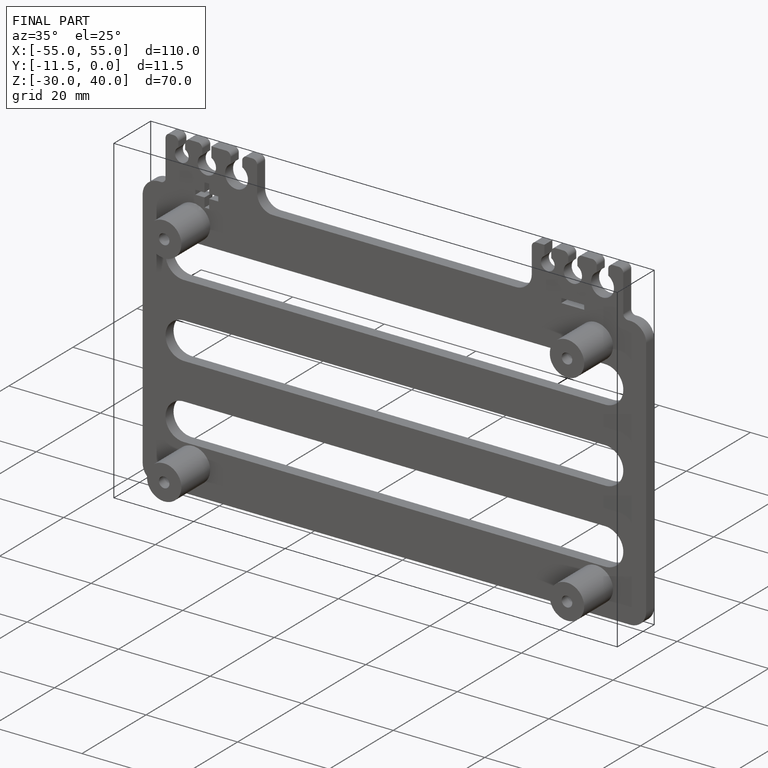
[diagram: finished part — iso view with bounding-box wireframe]
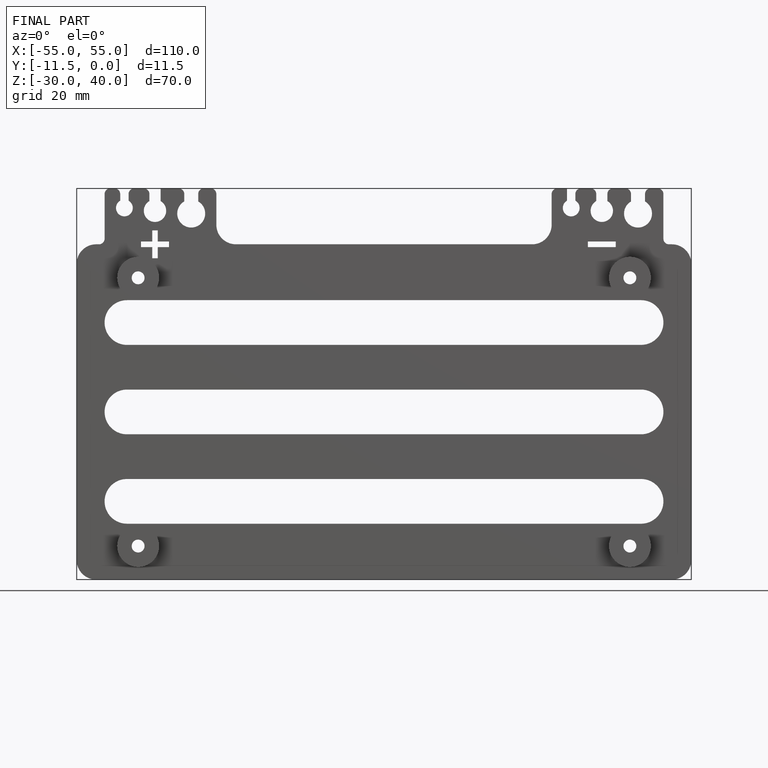
[diagram: finished part — front view with bounding-box wireframe]
